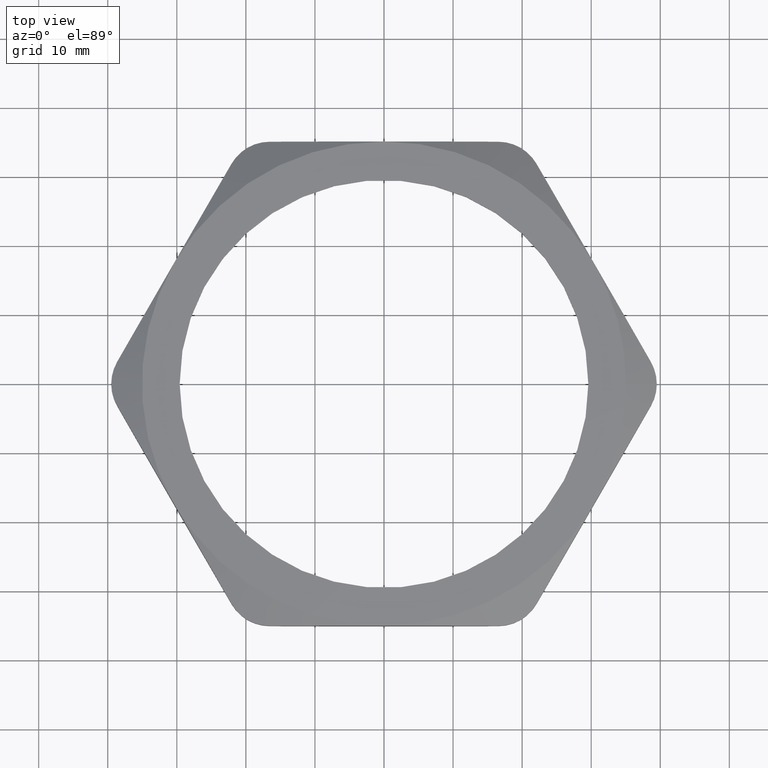
[diagram: clean part render]
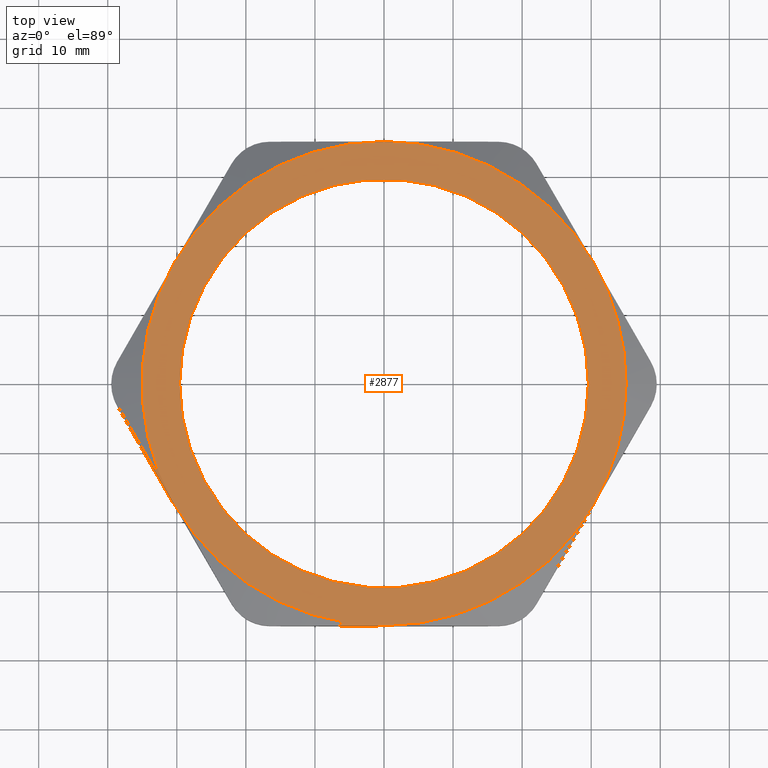
[diagram: same view with one face highlighted and labeled with its STEP entity id]
A machine part, top view. The second image highlights one B-rep face of the part: STEP entity #2877.
In plain terms, the highlighted planar face has unit normal (0, 0, -1).
Its self-contained STEP definition (entity closure, byte-faithful):
#481 = CARTESIAN_POINT ( 'NONE',  ( 1.195115057222526400, 0.6900000000000001700, 0.3100000000000000000 ) ) ;
#492 = CARTESIAN_POINT ( 'NONE',  ( 1.380000000000000100, 0.0000000000000000000, 0.3100000000000000000 ) ) ;
#493 = DIRECTION ( 'NONE',  ( 1.000000000000000000, 0.0000000000000000000, 0.0000000000000000000 ) ) ;
#494 = DIRECTION ( 'NONE',  ( 0.0000000000000000000, 0.0000000000000000000, 1.000000000000000000 ) ) ;
#495 = CARTESIAN_POINT ( 'NONE',  ( 0.0000000000000000000, 0.0000000000000000000, 0.3100000000000000000 ) ) ;
#496 = AXIS2_PLACEMENT_3D ( 'NONE', #495, #494, #493 ) ;
#497 = CIRCLE ( 'NONE', #496, 1.380000000000000100 ) ;
#824 = AXIS2_PLACEMENT_3D ( 'NONE', #882, #881, #880 ) ;
#825 = CIRCLE ( 'NONE', #824, 1.165000000000000000 ) ;
#840 = CARTESIAN_POINT ( 'NONE',  ( -1.165000000000000000, 0.0000000000000000000, 0.3100000000000000000 ) ) ;
#841 = CARTESIAN_POINT ( 'NONE',  ( 1.165000000000000000, 1.438959988998140200E-016, 0.3100000000000000000 ) ) ;
#880 = DIRECTION ( 'NONE',  ( 1.000000000000000000, 0.0000000000000000000, 0.0000000000000000000 ) ) ;
#881 = DIRECTION ( 'NONE',  ( 0.0000000000000000000, 0.0000000000000000000, 1.000000000000000000 ) ) ;
#882 = CARTESIAN_POINT ( 'NONE',  ( 0.0000000000000000000, 0.0000000000000000000, 0.3100000000000000000 ) ) ;
#1465 = CARTESIAN_POINT ( 'NONE',  ( 0.0000000000000000000, 1.380000000000000100, 0.3100000000000000000 ) ) ;
#1529 = CARTESIAN_POINT ( 'NONE',  ( 2.365849761790801000E-016, -1.379999999999999200, 0.3100000000000000000 ) ) ;
#1576 = CARTESIAN_POINT ( 'NONE',  ( -1.195115057222525300, 0.6900000000000001700, 0.3100000000000000000 ) ) ;
#1579 = CARTESIAN_POINT ( 'NONE',  ( -1.195115057222525500, -0.6899999999999992800, 0.3100000000000000000 ) ) ;
#1639 = DIRECTION ( 'NONE',  ( 1.000000000000000000, 0.0000000000000000000, 0.0000000000000000000 ) ) ;
#1640 = DIRECTION ( 'NONE',  ( 0.0000000000000000000, 0.0000000000000000000, 1.000000000000000000 ) ) ;
#1641 = CARTESIAN_POINT ( 'NONE',  ( 0.0000000000000000000, 0.0000000000000000000, 0.3100000000000000000 ) ) ;
#1642 = AXIS2_PLACEMENT_3D ( 'NONE', #1641, #1640, #1639 ) ;
#1643 = CIRCLE ( 'NONE', #1642, 1.380000000000000100 ) ;
#1650 = CARTESIAN_POINT ( 'NONE',  ( 0.0000000000000000000, 0.0000000000000000000, 0.3100000000000000000 ) ) ;
#1663 = CARTESIAN_POINT ( 'NONE',  ( 1.195115057222524600, -0.6899999999999995000, 0.3100000000000000000 ) ) ;
#1668 = CIRCLE ( 'NONE', #1731, 1.380000000000000100 ) ;
#1673 = CARTESIAN_POINT ( 'NONE',  ( 0.0000000000000000000, 0.0000000000000000000, 0.3100000000000000000 ) ) ;
#1676 = DIRECTION ( 'NONE',  ( -1.000000000000000000, 0.0000000000000000000, 0.0000000000000000000 ) ) ;
#1677 = DIRECTION ( 'NONE',  ( 0.0000000000000000000, 0.0000000000000000000, -1.000000000000000000 ) ) ;
#1678 = CARTESIAN_POINT ( 'NONE',  ( -0.7967433714816835000, 1.380000000000000100, 0.3100000000000000000 ) ) ;
#1679 = AXIS2_PLACEMENT_3D ( 'NONE', #1678, #1677, #1676 ) ;
#1680 = PLANE ( 'NONE',  #1679 ) ;
#1681 = FACE_OUTER_BOUND ( 'NONE', #2874, .T. ) ;
#1682 = FACE_BOUND ( 'NONE', #2875, .T. ) ;
#1683 = DIRECTION ( 'NONE',  ( 1.000000000000000000, 0.0000000000000000000, 0.0000000000000000000 ) ) ;
#1684 = DIRECTION ( 'NONE',  ( 0.0000000000000000000, 0.0000000000000000000, 1.000000000000000000 ) ) ;
#1685 = CARTESIAN_POINT ( 'NONE',  ( 0.0000000000000000000, 0.0000000000000000000, 0.3100000000000000000 ) ) ;
#1686 = AXIS2_PLACEMENT_3D ( 'NONE', #1685, #1684, #1683 ) ;
#1687 = CIRCLE ( 'NONE', #1686, 1.380000000000000100 ) ;
#1688 = DIRECTION ( 'NONE',  ( 1.000000000000000000, 0.0000000000000000000, 0.0000000000000000000 ) ) ;
#1689 = DIRECTION ( 'NONE',  ( 0.0000000000000000000, 0.0000000000000000000, 1.000000000000000000 ) ) ;
#1690 = CARTESIAN_POINT ( 'NONE',  ( 0.0000000000000000000, 0.0000000000000000000, 0.3100000000000000000 ) ) ;
#1691 = AXIS2_PLACEMENT_3D ( 'NONE', #1690, #1689, #1688 ) ;
#1692 = CIRCLE ( 'NONE', #1691, 1.380000000000000100 ) ;
#1693 = DIRECTION ( 'NONE',  ( 1.000000000000000000, 0.0000000000000000000, 0.0000000000000000000 ) ) ;
#1694 = DIRECTION ( 'NONE',  ( 0.0000000000000000000, 0.0000000000000000000, 1.000000000000000000 ) ) ;
#1695 = CARTESIAN_POINT ( 'NONE',  ( 0.0000000000000000000, 0.0000000000000000000, 0.3100000000000000000 ) ) ;
#1696 = AXIS2_PLACEMENT_3D ( 'NONE', #1695, #1694, #1693 ) ;
#1697 = CIRCLE ( 'NONE', #1696, 1.380000000000000100 ) ;
#1698 = DIRECTION ( 'NONE',  ( 1.000000000000000000, 0.0000000000000000000, 0.0000000000000000000 ) ) ;
#1699 = DIRECTION ( 'NONE',  ( 0.0000000000000000000, 0.0000000000000000000, 1.000000000000000000 ) ) ;
#1700 = AXIS2_PLACEMENT_3D ( 'NONE', #1650, #1699, #1698 ) ;
#1701 = CIRCLE ( 'NONE', #1700, 1.165000000000000000 ) ;
#1724 = DIRECTION ( 'NONE',  ( 1.000000000000000000, 0.0000000000000000000, 0.0000000000000000000 ) ) ;
#1725 = DIRECTION ( 'NONE',  ( 0.0000000000000000000, 0.0000000000000000000, 1.000000000000000000 ) ) ;
#1726 = CARTESIAN_POINT ( 'NONE',  ( 0.0000000000000000000, 0.0000000000000000000, 0.3100000000000000000 ) ) ;
#1727 = AXIS2_PLACEMENT_3D ( 'NONE', #1726, #1725, #1724 ) ;
#1728 = CIRCLE ( 'NONE', #1727, 1.380000000000000100 ) ;
#1729 = DIRECTION ( 'NONE',  ( 1.000000000000000000, 0.0000000000000000000, 0.0000000000000000000 ) ) ;
#1730 = DIRECTION ( 'NONE',  ( 0.0000000000000000000, 0.0000000000000000000, 1.000000000000000000 ) ) ;
#1731 = AXIS2_PLACEMENT_3D ( 'NONE', #1673, #1730, #1729 ) ;
#2258 = EDGE_CURVE ( 'NONE', #2259, #2269, #497, .T. ) ;
#2259 = VERTEX_POINT ( 'NONE', #492 ) ;
#2269 = VERTEX_POINT ( 'NONE', #481 ) ;
#2441 = VERTEX_POINT ( 'NONE', #841 ) ;
#2442 = VERTEX_POINT ( 'NONE', #840 ) ;
#2449 = EDGE_CURVE ( 'NONE', #2442, #2441, #825, .T. ) ;
#2789 = VERTEX_POINT ( 'NONE', #1465 ) ;
#2825 = VERTEX_POINT ( 'NONE', #1529 ) ;
#2828 = VERTEX_POINT ( 'NONE', #1576 ) ;
#2848 = VERTEX_POINT ( 'NONE', #1579 ) ;
#2859 = VERTEX_POINT ( 'NONE', #1663 ) ;
#2863 = ORIENTED_EDGE ( 'NONE', *, *, #2873, .T. ) ;
#2865 = ORIENTED_EDGE ( 'NONE', *, *, #2258, .T. ) ;
#2866 = EDGE_CURVE ( 'NONE', #2269, #2789, #1643, .T. ) ;
#2867 = EDGE_CURVE ( 'NONE', #2441, #2442, #1701, .T. ) ;
#2868 = ORIENTED_EDGE ( 'NONE', *, *, #2866, .T. ) ;
#2869 = ORIENTED_EDGE ( 'NONE', *, *, #2870, .T. ) ;
#2870 = EDGE_CURVE ( 'NONE', #2825, #2859, #1697, .T. ) ;
#2871 = EDGE_CURVE ( 'NONE', #2859, #2259, #1692, .T. ) ;
#2872 = ORIENTED_EDGE ( 'NONE', *, *, #2871, .T. ) ;
#2873 = EDGE_CURVE ( 'NONE', #2848, #2825, #1687, .T. ) ;
#2874 = EDGE_LOOP ( 'NONE', ( #2878, #2889, #2863, #2869, #2872, #2865, #2868 ) ) ;
#2875 = EDGE_LOOP ( 'NONE', ( #2876, #2890 ) ) ;
#2876 = ORIENTED_EDGE ( 'NONE', *, *, #2449, .F. ) ;
#2877 = ADVANCED_FACE ( 'NONE', ( #1682, #1681 ), #1680, .F. ) ;
#2878 = ORIENTED_EDGE ( 'NONE', *, *, #2880, .T. ) ;
#2880 = EDGE_CURVE ( 'NONE', #2789, #2828, #1668, .T. ) ;
#2881 = EDGE_CURVE ( 'NONE', #2828, #2848, #1728, .T. ) ;
#2889 = ORIENTED_EDGE ( 'NONE', *, *, #2881, .T. ) ;
#2890 = ORIENTED_EDGE ( 'NONE', *, *, #2867, .F. ) ;